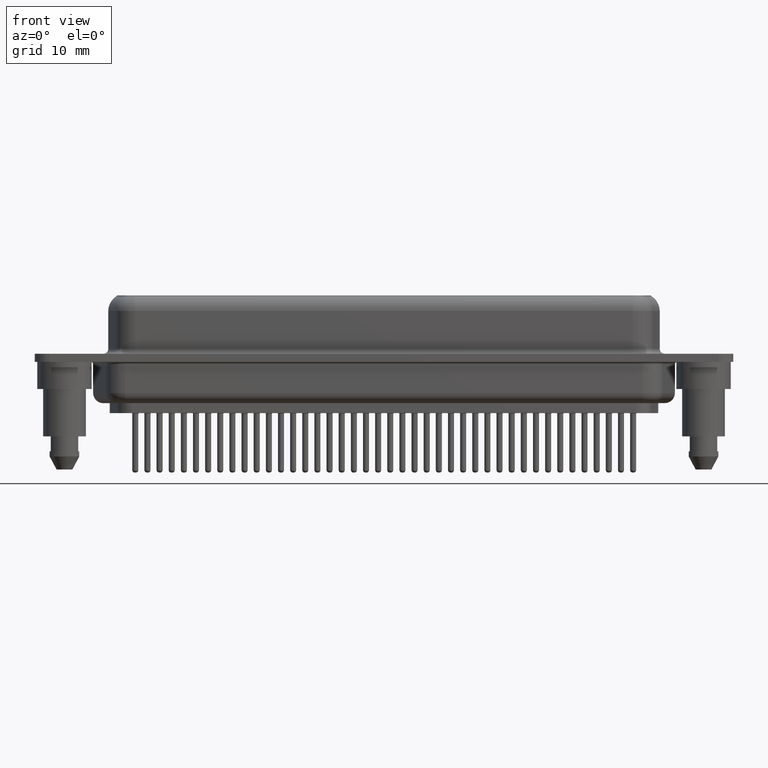
[diagram: clean part render]
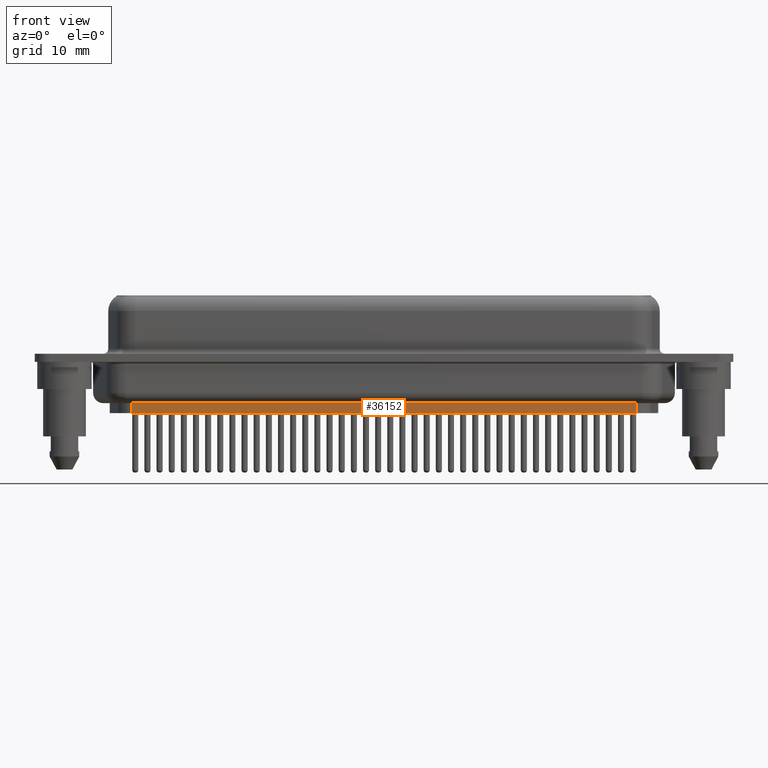
[diagram: same view with one face highlighted and labeled with its STEP entity id]
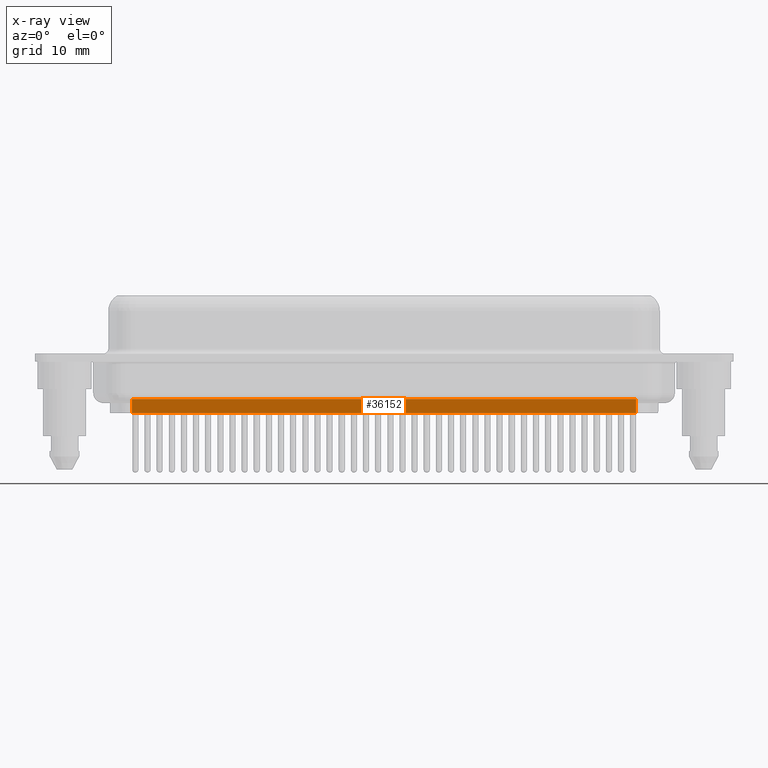
[diagram: x-ray of the same camera — body ghosted, the highlighted face saturated]
A machine part, front view. The second image highlights one B-rep face of the part: STEP entity #36152.
The next image is the same camera in x-ray: the body ghosted, the highlighted face saturated — about 0% of this face is hidden behind the body in this view.
In plain terms, the highlighted planar face has unit normal (-0, -1, 0).
Its self-contained STEP definition (entity closure, byte-faithful):
#106 = ORIENTED_EDGE ( 'NONE', *, *, #12389, .T. ) ;
#793 = PLANE ( 'NONE',  #10798 ) ;
#1731 = DIRECTION ( 'NONE',  ( 0.0000000000000000000, 0.0000000000000000000, -1.000000000000000000 ) ) ;
#3202 = VERTEX_POINT ( 'NONE', #26892 ) ;
#4763 = EDGE_CURVE ( 'NONE', #26428, #5504, #22216, .T. ) ;
#5504 = VERTEX_POINT ( 'NONE', #9205 ) ;
#6030 = EDGE_CURVE ( 'NONE', #18943, #3202, #25625, .T. ) ;
#7776 = ORIENTED_EDGE ( 'NONE', *, *, #6030, .F. ) ;
#9205 = CARTESIAN_POINT ( 'NONE',  ( 6.706144415194948749, -3.499999999999988454, -5.500000000000000000 ) ) ;
#10798 = AXIS2_PLACEMENT_3D ( 'NONE', #24908, #36825, #36630 ) ;
#12389 = EDGE_CURVE ( 'NONE', #18943, #26428, #26009, .T. ) ;
#15513 = EDGE_CURVE ( 'NONE', #3202, #5504, #19932, .T. ) ;
#15656 = VECTOR ( 'NONE', #36663, 1000.000000000000000 ) ;
#17397 = DIRECTION ( 'NONE',  ( -1.000000000000000000, 8.658428561960934242E-17, -0.0000000000000000000 ) ) ;
#17637 = VECTOR ( 'NONE', #1731, 1000.000000000000000 ) ;
#18943 = VERTEX_POINT ( 'NONE', #38143 ) ;
#19932 = LINE ( 'NONE', #28902, #28706 ) ;
#21806 = ORIENTED_EDGE ( 'NONE', *, *, #4763, .T. ) ;
#22216 = LINE ( 'NONE', #34117, #15656 ) ;
#22534 = CARTESIAN_POINT ( 'NONE',  ( 56.79385558480505125, -3.499999999999996003, -3.099999999999999645 ) ) ;
#23188 = EDGE_LOOP ( 'NONE', ( #7776, #106, #21806, #33357 ) ) ;
#24908 = CARTESIAN_POINT ( 'NONE',  ( 6.706144415194948749, -3.499999999999988454, -3.099999999999999645 ) ) ;
#25625 = LINE ( 'NONE', #22534, #17637 ) ;
#25815 = CARTESIAN_POINT ( 'NONE',  ( 6.458668053078271853, -3.499999999999988454, -4.096662954709576532 ) ) ;
#26009 = LINE ( 'NONE', #25815, #34224 ) ;
#26428 = VERTEX_POINT ( 'NONE', #31884 ) ;
#26892 = CARTESIAN_POINT ( 'NONE',  ( 56.79385558480505125, -3.499999999999996003, -5.500000000000000000 ) ) ;
#28706 = VECTOR ( 'NONE', #17397, 1000.000000000000000 ) ;
#28902 = CARTESIAN_POINT ( 'NONE',  ( 6.706144415194948749, -3.499999999999988454, -5.500000000000000000 ) ) ;
#31884 = CARTESIAN_POINT ( 'NONE',  ( 6.706144415194948749, -3.499999999999988454, -4.096662954709576532 ) ) ;
#33357 = ORIENTED_EDGE ( 'NONE', *, *, #15513, .F. ) ;
#34117 = CARTESIAN_POINT ( 'NONE',  ( 6.706144415194948749, -3.499999999999988454, -3.099999999999999645 ) ) ;
#34224 = VECTOR ( 'NONE', #37758, 1000.000000000000000 ) ;
#34273 = FACE_OUTER_BOUND ( 'NONE', #23188, .T. ) ;
#36152 = ADVANCED_FACE ( 'NONE', ( #34273 ), #793, .T. ) ;
#36630 = DIRECTION ( 'NONE',  ( 1.000000000000000000, -8.658428561960935475E-17, 0.0000000000000000000 ) ) ;
#36663 = DIRECTION ( 'NONE',  ( 0.0000000000000000000, 0.0000000000000000000, -1.000000000000000000 ) ) ;
#36825 = DIRECTION ( 'NONE',  ( -8.658428561960935475E-17, -1.000000000000000000, 0.0000000000000000000 ) ) ;
#37758 = DIRECTION ( 'NONE',  ( -1.000000000000000000, -5.144223363613551700E-17, 0.0000000000000000000 ) ) ;
#38143 = CARTESIAN_POINT ( 'NONE',  ( 56.79385558480505125, -3.499999999999996003, -4.096662954709576532 ) ) ;